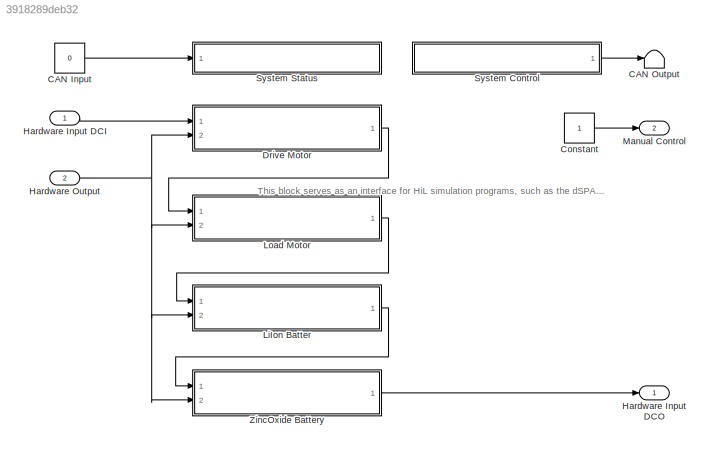
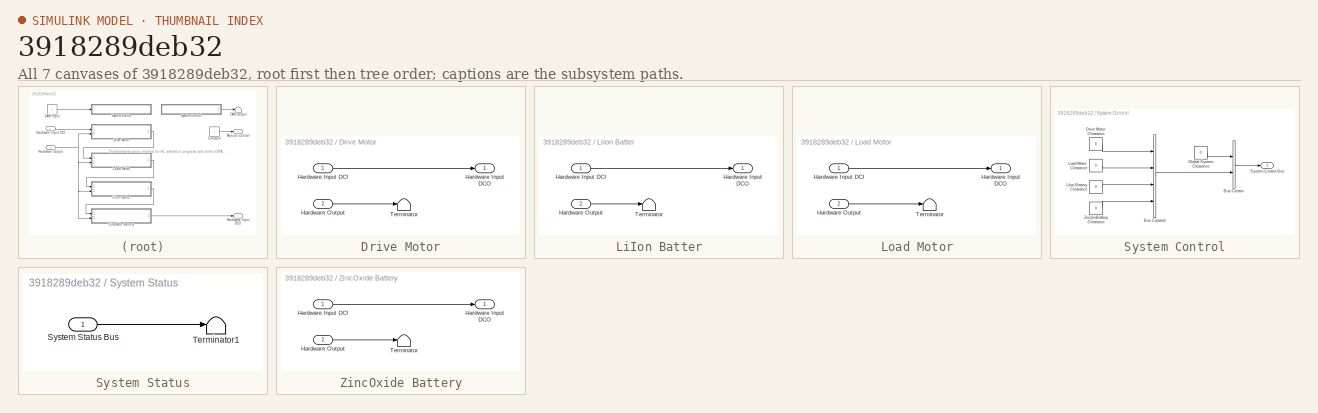
[diagram: thumbnail index - all 7 canvases of the model, root first then tree order]
MODEL slx_3918289deb32
KIND model
BLOCK [Constant] CAN Input
  OutDataTypeStr = Inherit: Inherit via back propagation
  Value = 0
BLOCK [Terminator] CAN Output
BLOCK [Constant] Constant
  OutDataTypeStr = boolean
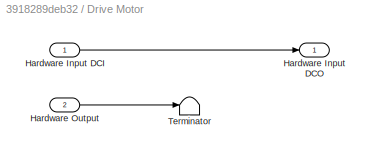
BLOCK [SubSystem] Drive Motor
  Ports = [2, 1]
  RequestExecContextInheritance = off
BLOCK [Inport] Drive Motor/Hardware Input DCI
  IconDisplay = Port number
BLOCK [Outport] Drive Motor/Hardware Input DCO
  IconDisplay = Port number
BLOCK [Inport] Drive Motor/Hardware Output
  IconDisplay = Port number
  Port = 2
BLOCK [Terminator] Drive Motor/Terminator
BLOCK [Inport] Hardware Input DCI
  BusOutputAsStruct = on
  IconDisplay = Port number
  OutDataTypeStr = Bus: HARDWARE_INPUT_BUS
BLOCK [Outport] Hardware Input DCO
  BusOutputAsStruct = on
  IconDisplay = Port number
  OutDataTypeStr = Bus: HARDWARE_INPUT_BUS
BLOCK [Inport] Hardware Output
  BusOutputAsStruct = on
  IconDisplay = Port number
  OutDataTypeStr = Bus: HARDWARE_OUTPUT_BUS
  Port = 2
BLOCK [SubSystem] LiIon Batter
  Ports = [2, 1]
  RequestExecContextInheritance = off
BLOCK [Inport] LiIon Batter/Hardware Input DCI
  IconDisplay = Port number
BLOCK [Outport] LiIon Batter/Hardware Input DCO
  IconDisplay = Port number
BLOCK [Inport] LiIon Batter/Hardware Output
  IconDisplay = Port number
  Port = 2
BLOCK [Terminator] LiIon Batter/Terminator
BLOCK [SubSystem] Load Motor
  Ports = [2, 1]
  RequestExecContextInheritance = off
BLOCK [Inport] Load Motor/Hardware Input DCI
  IconDisplay = Port number
BLOCK [Outport] Load Motor/Hardware Input DCO
  IconDisplay = Port number
BLOCK [Inport] Load Motor/Hardware Output
  IconDisplay = Port number
  Port = 2
BLOCK [Terminator] Load Motor/Terminator
BLOCK [Outport] Manual Control
  IconDisplay = Port number
  Port = 2
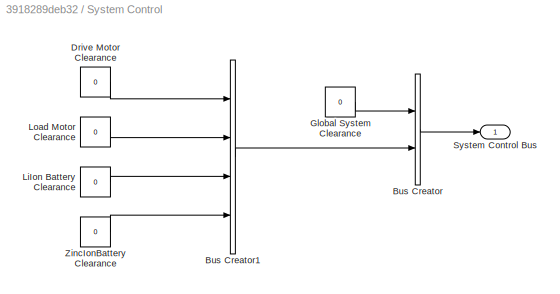
BLOCK [SubSystem] System Control
  Ports = [0, 1]
  RequestExecContextInheritance = off
BLOCK [BusCreator] System Control/Bus Creator
  DisplayOption = bar
  Inputs = 2
  Ports = [2, 1]
BLOCK [BusCreator] System Control/Bus Creator1
  DisplayOption = bar
  Ports = [4, 1]
BLOCK [Constant] System Control/Drive Motor Clearance
  OutDataTypeStr = boolean
  Value = 0
BLOCK [Constant] System Control/Global System Clearance
  OutDataTypeStr = boolean
  Value = 0
BLOCK [Constant] System Control/LiIon Battery Clearance
  OutDataTypeStr = boolean
  Value = 0
BLOCK [Constant] System Control/Load Motor Clearance
  OutDataTypeStr = boolean
  Value = 0
BLOCK [Outport] System Control/System Control Bus
  IconDisplay = Port number
BLOCK [Constant] System Control/ZincIonBattery Clearance
  OutDataTypeStr = boolean
  Value = 0
BLOCK [SubSystem] System Status
  Ports = [1]
  RequestExecContextInheritance = off
BLOCK [Inport] System Status/System Status Bus
  IconDisplay = Port number
BLOCK [Terminator] System Status/Terminator1
BLOCK [SubSystem] ZincOxide Battery
  Ports = [2, 1]
  RequestExecContextInheritance = off
BLOCK [Inport] ZincOxide Battery/Hardware Input DCI
  IconDisplay = Port number
BLOCK [Outport] ZincOxide Battery/Hardware Input DCO
  IconDisplay = Port number
BLOCK [Inport] ZincOxide Battery/Hardware Output
  IconDisplay = Port number
  Port = 2
BLOCK [Terminator] ZincOxide Battery/Terminator
ANNOTATION (root): This block serves as an interface for HiL simulation programs, such as the dSPACE ControlDesk. When the manual control is set to 1, it intercepts the input bus to allow for manual control.
LINE CAN Input:1 -> System Status:1
LINE Constant:1 -> Manual Control:1
LINE Drive Motor/Hardware Input DCI:1 -> Drive Motor/Hardware Input DCO:1
LINE Drive Motor/Hardware Output:1 -> Drive Motor/Terminator:1
LINE Drive Motor:1 -> Load Motor:1
LINE Hardware Input DCI:1 -> Drive Motor:1
NET Hardware Output:1 -> Drive Motor:2, LiIon Batter:2, Load Motor:2, ZincOxide Battery:2
LINE LiIon Batter/Hardware Input DCI:1 -> LiIon Batter/Hardware Input DCO:1
LINE LiIon Batter/Hardware Output:1 -> LiIon Batter/Terminator:1
LINE LiIon Batter:1 -> ZincOxide Battery:1
LINE Load Motor/Hardware Input DCI:1 -> Load Motor/Hardware Input DCO:1
LINE Load Motor/Hardware Output:1 -> Load Motor/Terminator:1
LINE Load Motor:1 -> LiIon Batter:1
LINE System Control/Bus Creator1:1 -> System Control/Bus Creator:2
LINE System Control/Bus Creator:1 -> System Control/System Control Bus:1
LINE System Control/Drive Motor Clearance:1 -> System Control/Bus Creator1:1
LINE System Control/Global System Clearance:1 -> System Control/Bus Creator:1
LINE System Control/LiIon Battery Clearance:1 -> System Control/Bus Creator1:3
LINE System Control/Load Motor Clearance:1 -> System Control/Bus Creator1:2
LINE System Control/ZincIonBattery Clearance:1 -> System Control/Bus Creator1:4
LINE System Control:1 -> CAN Output:1
LINE System Status/System Status Bus:1 -> System Status/Terminator1:1
LINE ZincOxide Battery/Hardware Input DCI:1 -> ZincOxide Battery/Hardware Input DCO:1
LINE ZincOxide Battery/Hardware Output:1 -> ZincOxide Battery/Terminator:1
LINE ZincOxide Battery:1 -> Hardware Input DCO:1
note: NET lines group one-source signal fan-out (src -> all destinations, sorted); 1:1 wires keep LINE
